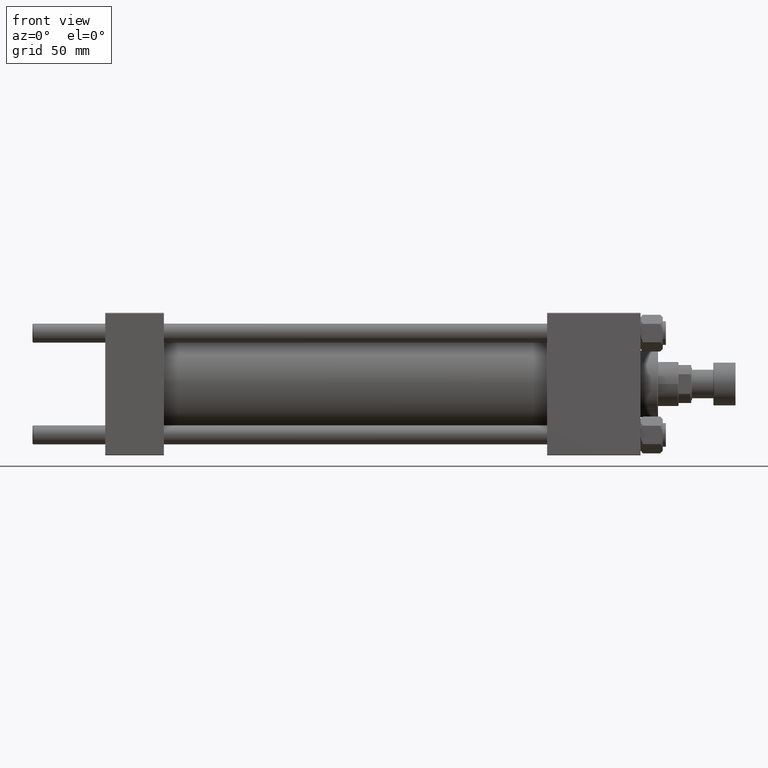
[diagram: clean part render]
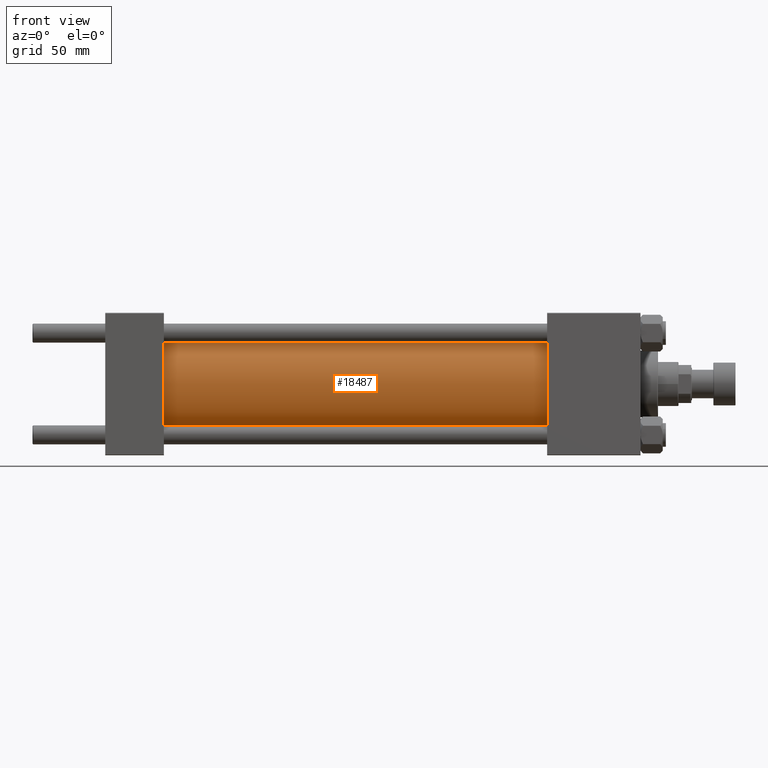
[diagram: same view with one face highlighted and labeled with its STEP entity id]
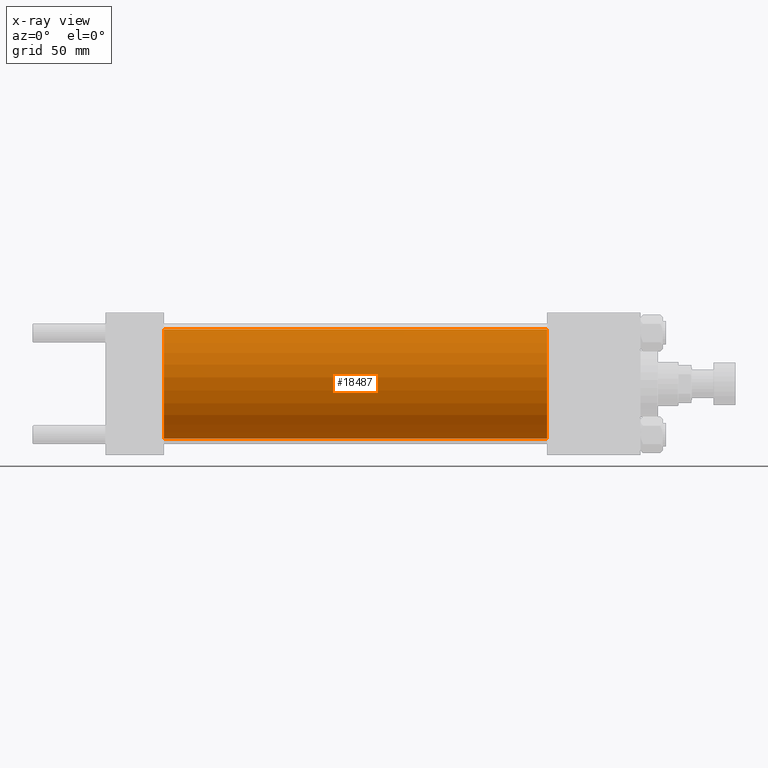
[diagram: x-ray of the same camera — body ghosted, the highlighted face saturated]
A machine part, front view. The second image highlights one B-rep face of the part: STEP entity #18487.
The next image is the same camera in x-ray: the body ghosted, the highlighted face saturated — about 0% of this face is hidden behind the body in this view.
In plain terms, the highlighted cylindrical surface (partial cylindrical patch) has radius 34.5 mm, axis along (-1, -0, -0).
Its self-contained STEP definition (entity closure, byte-faithful):
#2515 = VECTOR ( 'NONE', #16941, 1000.000000000000000 ) ;
#3941 = VERTEX_POINT ( 'NONE', #9700 ) ;
#4035 = CIRCLE ( 'NONE', #36511, 34.49999999999999289 ) ;
#5509 = LINE ( 'NONE', #40337, #2515 ) ;
#6163 = CARTESIAN_POINT ( 'NONE',  ( 278.9999999999999432, 0.000000000000000000, 0.000000000000000000 ) ) ;
#6689 = ORIENTED_EDGE ( 'NONE', *, *, #24919, .T. ) ;
#8470 = VERTEX_POINT ( 'NONE', #42678 ) ;
#8689 = DIRECTION ( 'NONE',  ( 0.000000000000000000, 0.000000000000000000, 1.000000000000000000 ) ) ;
#9159 = LINE ( 'NONE', #31113, #19045 ) ;
#9573 = ORIENTED_EDGE ( 'NONE', *, *, #36788, .F. ) ;
#9700 = CARTESIAN_POINT ( 'NONE',  ( 37.00000000000000711, 4.225031457058367344E-15, -34.49999999999999289 ) ) ;
#11501 = FACE_OUTER_BOUND ( 'NONE', #42720, .T. ) ;
#12008 = DIRECTION ( 'NONE',  ( -1.000000000000000000, -0.000000000000000000, -0.000000000000000000 ) ) ;
#12408 = DIRECTION ( 'NONE',  ( 1.000000000000000000, -0.000000000000000000, 0.000000000000000000 ) ) ;
#12653 = CARTESIAN_POINT ( 'NONE',  ( 37.00000000000000711, 0.000000000000000000, 0.000000000000000000 ) ) ;
#15151 = EDGE_CURVE ( 'NONE', #31601, #8470, #5509, .T. ) ;
#16941 = DIRECTION ( 'NONE',  ( -1.000000000000000000, -0.000000000000000000, -0.000000000000000000 ) ) ;
#17783 = AXIS2_PLACEMENT_3D ( 'NONE', #23444, #12008, #8689 ) ;
#18487 = ADVANCED_FACE ( 'NONE', ( #11501 ), #46318, .T. ) ;
#19045 = VECTOR ( 'NONE', #47549, 1000.000000000000000 ) ;
#20013 = ORIENTED_EDGE ( 'NONE', *, *, #15151, .T. ) ;
#20669 = CARTESIAN_POINT ( 'NONE',  ( 278.9999999999999432, 4.225031457058367344E-15, -34.49999999999999289 ) ) ;
#21672 = DIRECTION ( 'NONE',  ( 0.000000000000000000, 0.000000000000000000, -1.000000000000000000 ) ) ;
#21810 = CIRCLE ( 'NONE', #24260, 34.49999999999999289 ) ;
#23444 = CARTESIAN_POINT ( 'NONE',  ( 278.9999999999999432, 0.000000000000000000, 0.000000000000000000 ) ) ;
#24260 = AXIS2_PLACEMENT_3D ( 'NONE', #6163, #43823, #21672 ) ;
#24919 = EDGE_CURVE ( 'NONE', #8470, #3941, #4035, .T. ) ;
#26530 = VERTEX_POINT ( 'NONE', #20669 ) ;
#27916 = DIRECTION ( 'NONE',  ( 0.000000000000000000, 0.000000000000000000, 1.000000000000000000 ) ) ;
#30655 = CARTESIAN_POINT ( 'NONE',  ( 278.9999999999999432, 0.000000000000000000, 34.49999999999999289 ) ) ;
#31113 = CARTESIAN_POINT ( 'NONE',  ( 278.9999999999999432, 4.225031457058367344E-15, -34.49999999999999289 ) ) ;
#31601 = VERTEX_POINT ( 'NONE', #30655 ) ;
#36511 = AXIS2_PLACEMENT_3D ( 'NONE', #12653, #12408, #27916 ) ;
#36788 = EDGE_CURVE ( 'NONE', #26530, #3941, #9159, .T. ) ;
#37409 = ORIENTED_EDGE ( 'NONE', *, *, #46657, .F. ) ;
#40337 = CARTESIAN_POINT ( 'NONE',  ( 278.9999999999999432, 0.000000000000000000, 34.49999999999999289 ) ) ;
#42678 = CARTESIAN_POINT ( 'NONE',  ( 37.00000000000000711, 0.000000000000000000, 34.49999999999999289 ) ) ;
#42720 = EDGE_LOOP ( 'NONE', ( #9573, #37409, #20013, #6689 ) ) ;
#43823 = DIRECTION ( 'NONE',  ( 1.000000000000000000, 0.000000000000000000, 0.000000000000000000 ) ) ;
#46318 = CYLINDRICAL_SURFACE ( 'NONE', #17783, 34.49999999999999289 ) ;
#46657 = EDGE_CURVE ( 'NONE', #31601, #26530, #21810, .T. ) ;
#47549 = DIRECTION ( 'NONE',  ( -1.000000000000000000, -0.000000000000000000, -0.000000000000000000 ) ) ;